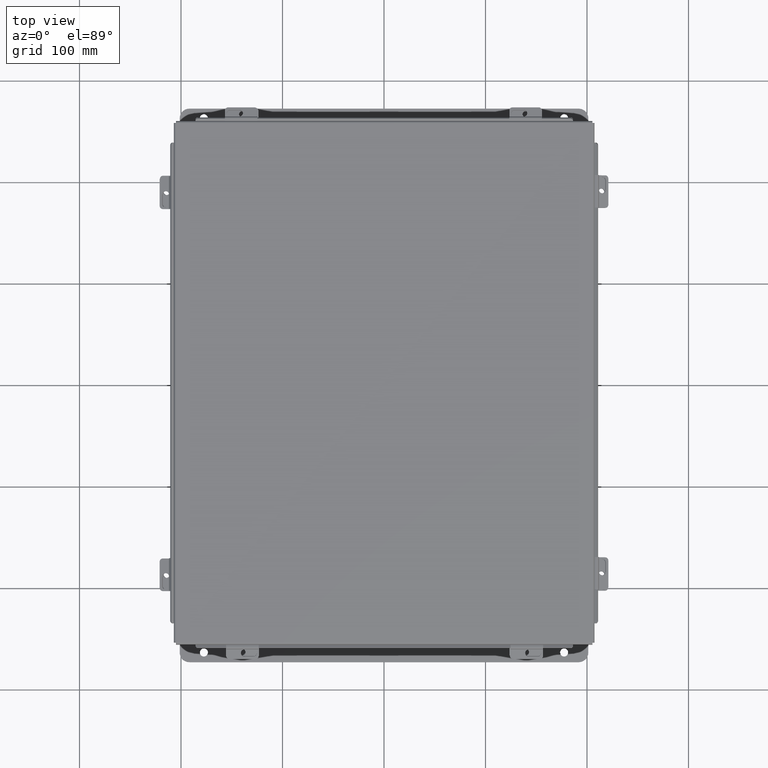
[diagram: clean part render]
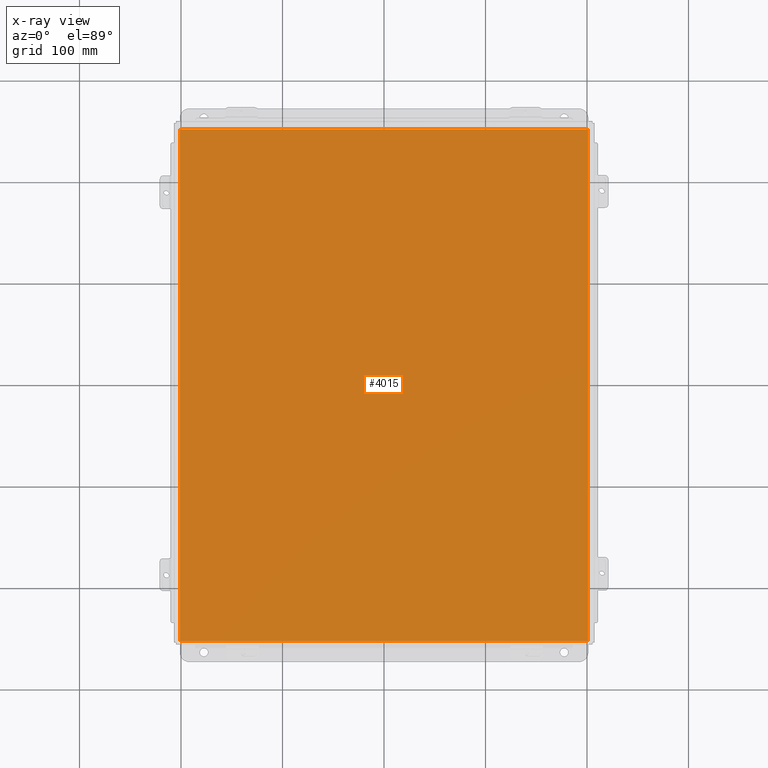
[diagram: x-ray — body ghosted, one internal face saturated and labeled with its STEP entity id]
A machine part, top view, then the same camera in x-ray: the body is ghosted and one INTERNAL B-rep face — a face not visible from any outside direction — is saturated and labeled: STEP entity #4015.
In plain terms, the highlighted planar face has unit normal (0, 0, -1).
Its self-contained STEP definition (entity closure, byte-faithful):
#286 = AXIS2_PLACEMENT_3D ( 'NONE', #3517, #4148, #6951 ) ;
#786 = LINE ( 'NONE', #8264, #8059 ) ;
#876 = VECTOR ( 'NONE', #8314, 39.37007874015748100 ) ;
#1590 = CARTESIAN_POINT ( 'NONE',  ( -7.999999999999996400, -9.925299999999998200, 0.0000000000000000000 ) ) ;
#1739 = CARTESIAN_POINT ( 'NONE',  ( 7.912300000000002800, 9.925299999999996500, 4.268512490100411300E-017 ) ) ;
#1920 = EDGE_CURVE ( 'NONE', #2169, #7613, #7305, .T. ) ;
#2169 = VERTEX_POINT ( 'NONE', #8267 ) ;
#2332 = LINE ( 'NONE', #1739, #5400 ) ;
#2540 = ORIENTED_EDGE ( 'NONE', *, *, #1920, .T. ) ;
#2973 = EDGE_CURVE ( 'NONE', #4263, #7613, #2332, .T. ) ;
#3277 = CARTESIAN_POINT ( 'NONE',  ( 7.912300000000002800, 9.925299999999992900, 4.268512490100411300E-017 ) ) ;
#3279 = ORIENTED_EDGE ( 'NONE', *, *, #7066, .F. ) ;
#3517 = CARTESIAN_POINT ( 'NONE',  ( 0.0000000000000000000, 0.0000000000000000000, 0.0000000000000000000 ) ) ;
#3807 = FACE_OUTER_BOUND ( 'NONE', #7991, .T. ) ;
#4015 = ADVANCED_FACE ( 'NONE', ( #3807 ), #7842, .F. ) ;
#4148 = DIRECTION ( 'NONE',  ( 0.0000000000000000000, 0.0000000000000000000, -1.000000000000000000 ) ) ;
#4226 = LINE ( 'NONE', #4276, #876 ) ;
#4263 = VERTEX_POINT ( 'NONE', #3277 ) ;
#4276 = CARTESIAN_POINT ( 'NONE',  ( -7.912299999999996600, -9.925299999999998200, -1.314701846950926700E-015 ) ) ;
#4644 = DIRECTION ( 'NONE',  ( 1.000000000000000000, -1.365923996832131600E-016, 0.0000000000000000000 ) ) ;
#5400 = VECTOR ( 'NONE', #6562, 39.37007874015748100 ) ;
#6562 = DIRECTION ( 'NONE',  ( -0.0000000000000000000, -1.000000000000000000, -0.0000000000000000000 ) ) ;
#6951 = DIRECTION ( 'NONE',  ( -1.000000000000000000, 0.0000000000000000000, -0.0000000000000000000 ) ) ;
#7066 = EDGE_CURVE ( 'NONE', #2169, #9141, #4226, .T. ) ;
#7181 = ORIENTED_EDGE ( 'NONE', *, *, #8880, .T. ) ;
#7305 = LINE ( 'NONE', #1590, #7647 ) ;
#7613 = VERTEX_POINT ( 'NONE', #8054 ) ;
#7647 = VECTOR ( 'NONE', #4644, 39.37007874015748100 ) ;
#7842 = PLANE ( 'NONE',  #286 ) ;
#7991 = EDGE_LOOP ( 'NONE', ( #8674, #7181, #3279, #2540 ) ) ;
#8054 = CARTESIAN_POINT ( 'NONE',  ( 7.912300000000002800, -9.925300000000000000, 4.268512490100411300E-017 ) ) ;
#8059 = VECTOR ( 'NONE', #9126, 39.37007874015748100 ) ;
#8264 = CARTESIAN_POINT ( 'NONE',  ( -7.999999999999996400, 9.925299999999998200, 0.0000000000000000000 ) ) ;
#8267 = CARTESIAN_POINT ( 'NONE',  ( -7.912299999999996600, -9.925299999999998200, -1.314701846950926700E-015 ) ) ;
#8314 = DIRECTION ( 'NONE',  ( -0.0000000000000000000, 1.000000000000000000, 8.208677865577646300E-017 ) ) ;
#8673 = CARTESIAN_POINT ( 'NONE',  ( -7.912299999999996600, 9.925299999999998200, 3.158699242674304400E-016 ) ) ;
#8674 = ORIENTED_EDGE ( 'NONE', *, *, #2973, .F. ) ;
#8880 = EDGE_CURVE ( 'NONE', #4263, #9141, #786, .T. ) ;
#9126 = DIRECTION ( 'NONE',  ( -1.000000000000000000, -0.0000000000000000000, -0.0000000000000000000 ) ) ;
#9141 = VERTEX_POINT ( 'NONE', #8673 ) ;